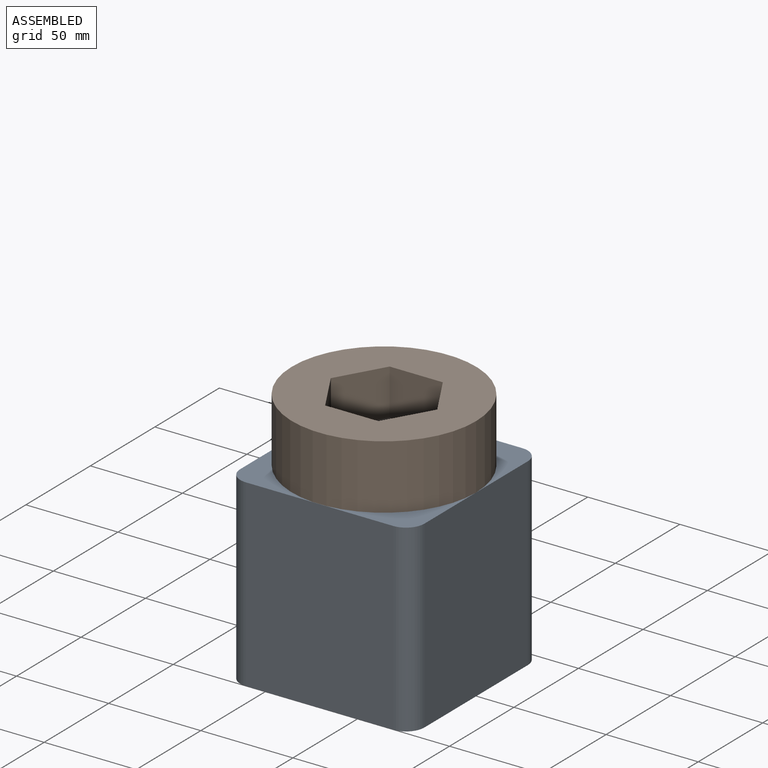
[diagram: assembled view]
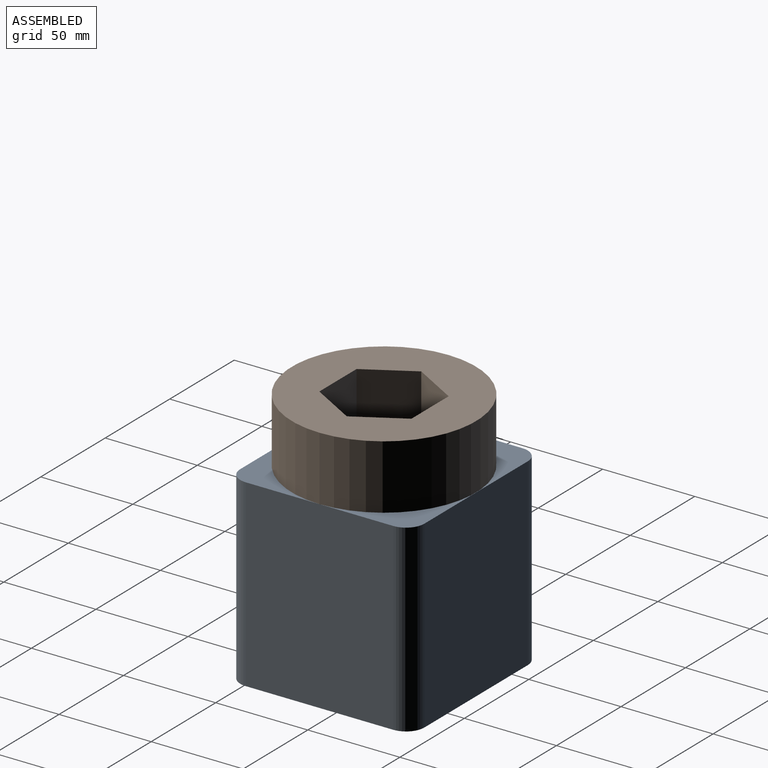
[diagram: assembled view, second angle]
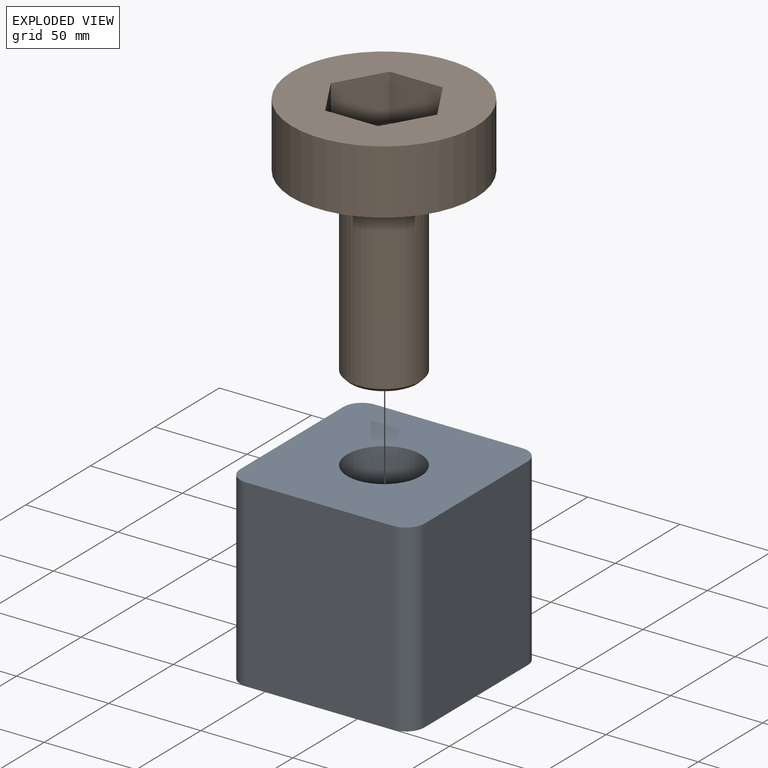
[diagram: exploded view]
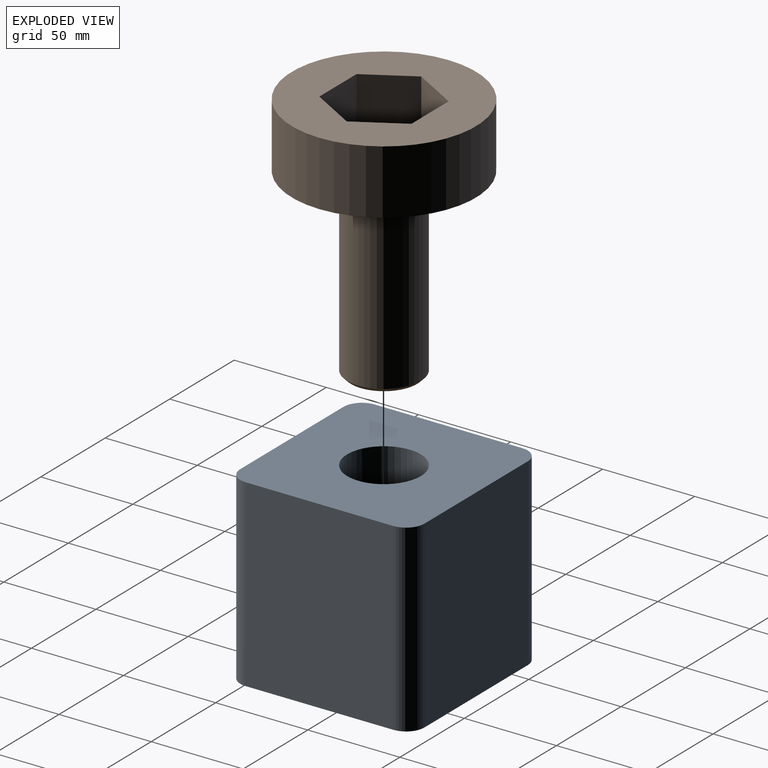
[diagram: exploded view, second angle]
ASSEMBLY  parts=2 mates=2
PART A: 12 faces, bbox 100x100x100 mm
  f0: plane 100x80mm, normal (0,0,1), area 8000mm2, adj f4,f5,f7,f10
  f1: plane 100x80mm, normal (-1,0,0), area 8000mm2, adj f4,f5,f7,f8
  f2: plane 100x80mm, normal (0,0,-1), area 8000mm2, adj f4,f5,f8,f9
  f3: plane 100x80mm, normal (1,0,0), area 8000mm2, adj f4,f5,f9,f10
  f4: plane 100x100mm, normal (0,-1,0), area 7950.7mm2, adj f0,f1,f2,f3,f7,f8,f9,f10
  f5: plane 100x100mm, normal (0,1,0), area 8657.5mm2, adj f0,f1,f2,f3,f6,f7,f8,f9
  f6: cylinder r=20mm len=95mm, axis (0,-1,0), area 11938.1mm2, adj f5,f11
  f7: cylinder r=10mm len=100mm, axis (0,-1,0), area 1570.8mm2, adj f0,f1,f4,f5
  f8: cylinder r=10mm len=100mm, axis (0,1,0), area 1570.8mm2, adj f1,f2,f4,f5
  f9: cylinder r=10mm len=100mm, axis (0,-1,0), area 1570.8mm2, adj f2,f3,f4,f5
  f10: cylinder r=10mm len=100mm, axis (0,1,0), area 1570.8mm2, adj f0,f3,f4,f5
  f11: torus R=25mm, axis (0,-1,0), area 1076.6mm2, adj f4,f6
PART B: 13 faces, bbox 100x100x135 mm
  f0: cylinder r=20mm len=98mm, axis (0,0,-1), area 12315mm2, adj f4,f5
  f1: plane 36x36mm, normal (0,0,-1), area 1017.9mm2, adj f5
  f2: cylinder r=50mm len=100mm, axis (0,0,-1), area 10995.6mm2, adj f3,f4
  f3: plane 100x100mm, normal (0,0,1), area 5688.9mm2, adj f2,f6,f7,f8,f9,f10,f11
  f4: plane 100x100mm, normal (0,0,-1), area 6597.3mm2, adj f0,f2
  f5: cone r=20mm half-angle=45deg, axis (0,0,1), area 337.7mm2, adj f0,f1
  f6: plane 28.87x25mm, normal (0,1,0), area 721.7mm2, adj f3,f7,f11,f12
  f7: plane 25x25mm, normal (-0.87,0.5,0), area 721.7mm2, adj f3,f6,f8,f12
  f8: plane 25x25mm, normal (-0.87,-0.5,0), area 721.7mm2, adj f3,f7,f9,f12
  f9: plane 28.87x25mm, normal (0,-1,0), area 721.7mm2, adj f3,f8,f10,f12
  f10: plane 25x25mm, normal (0.87,-0.5,0), area 721.7mm2, adj f3,f9,f11,f12
  f11: plane 25x25mm, normal (0.87,0.5,0), area 721.7mm2, adj f3,f6,f10,f12
  f12: plane 57.74x50mm, normal (0,0,1), area 2165.1mm2, adj f6,f7,f8,f9,f10,f11
PLACE A rot(axis=(1,0,0),90deg) t=(83.21,-5.36,22.18)mm
PLACE B t=(83.21,-5.36,-77.82)mm
MATE cylindrical A.f6 <-> B.f0  axis (0,0,-1) through (83.21,-5.36,-77.82)mm
MATE planar B.f2 <-> A.f10  axis (0,0,-1) through (83.21,-5.36,22.18)mm
